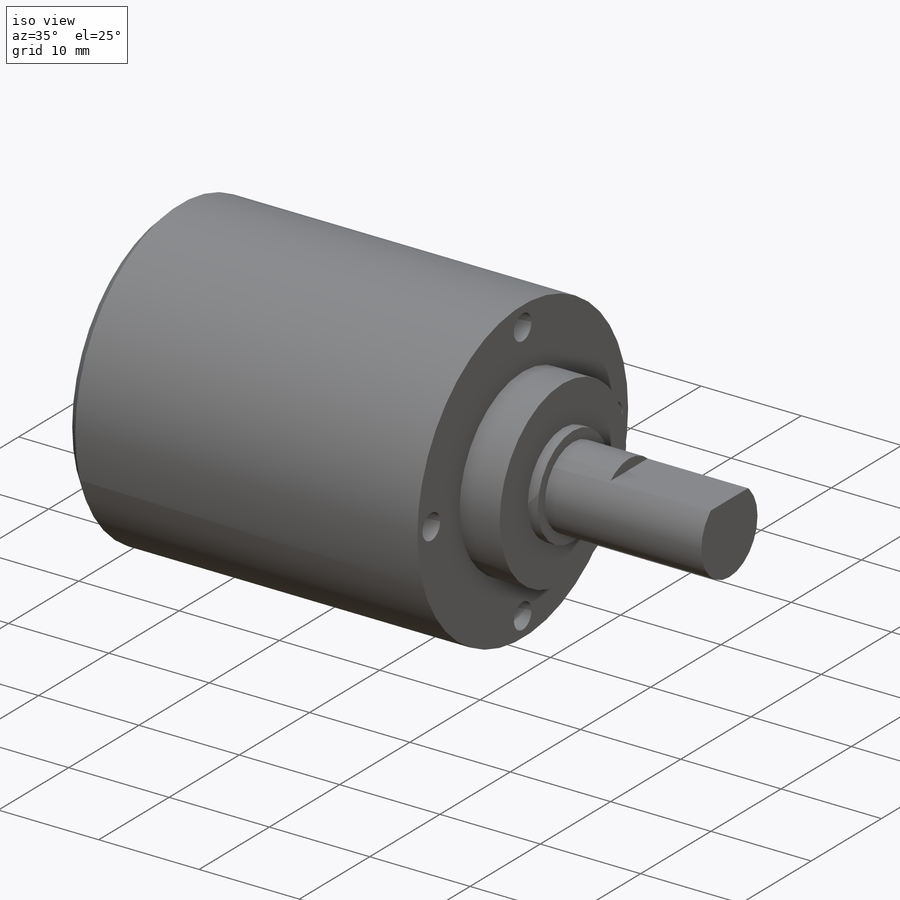
[diagram: iso view]
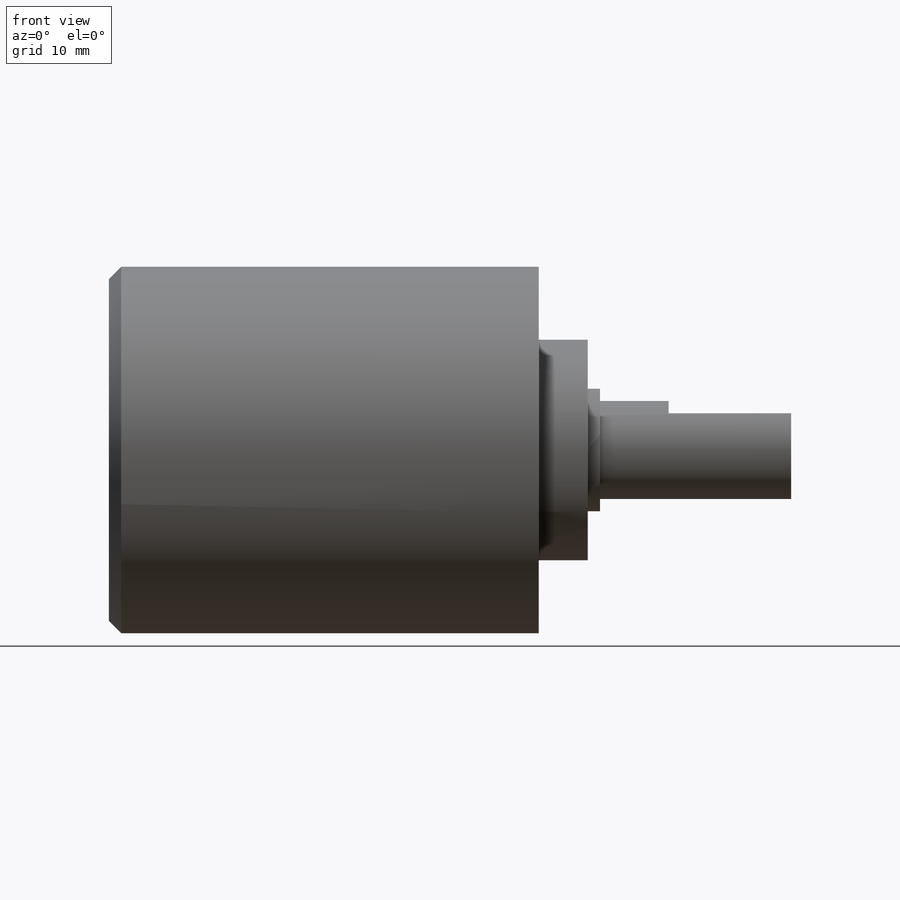
[diagram: front view]
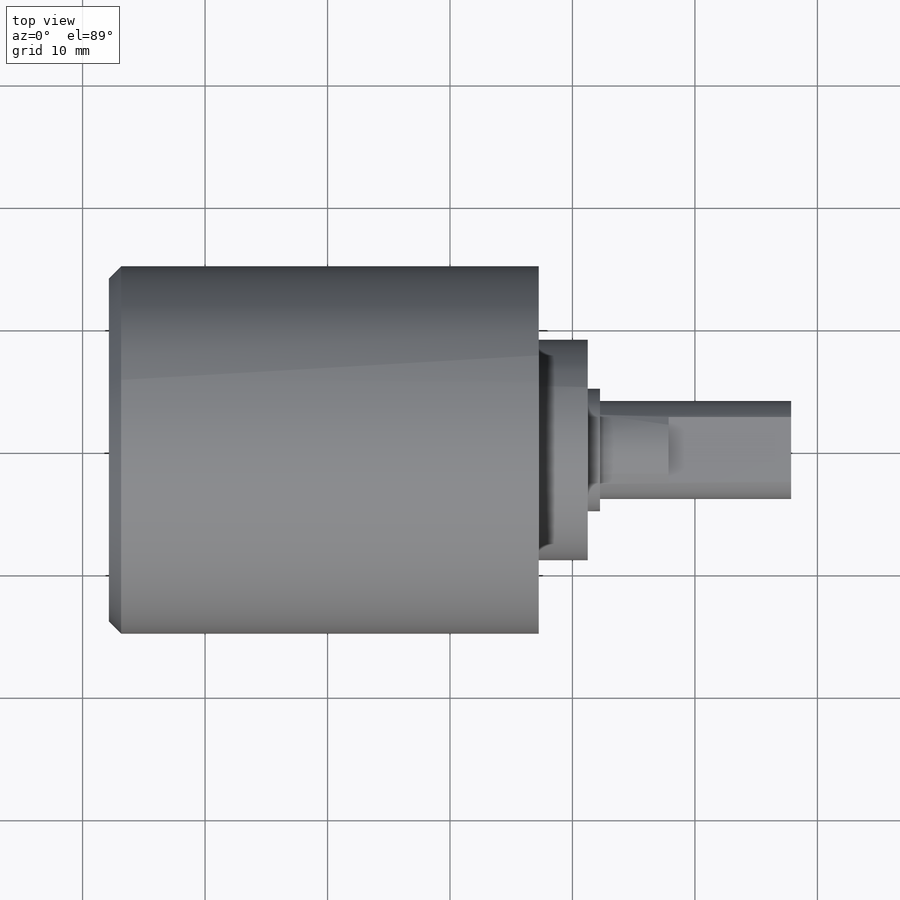
[diagram: top view]
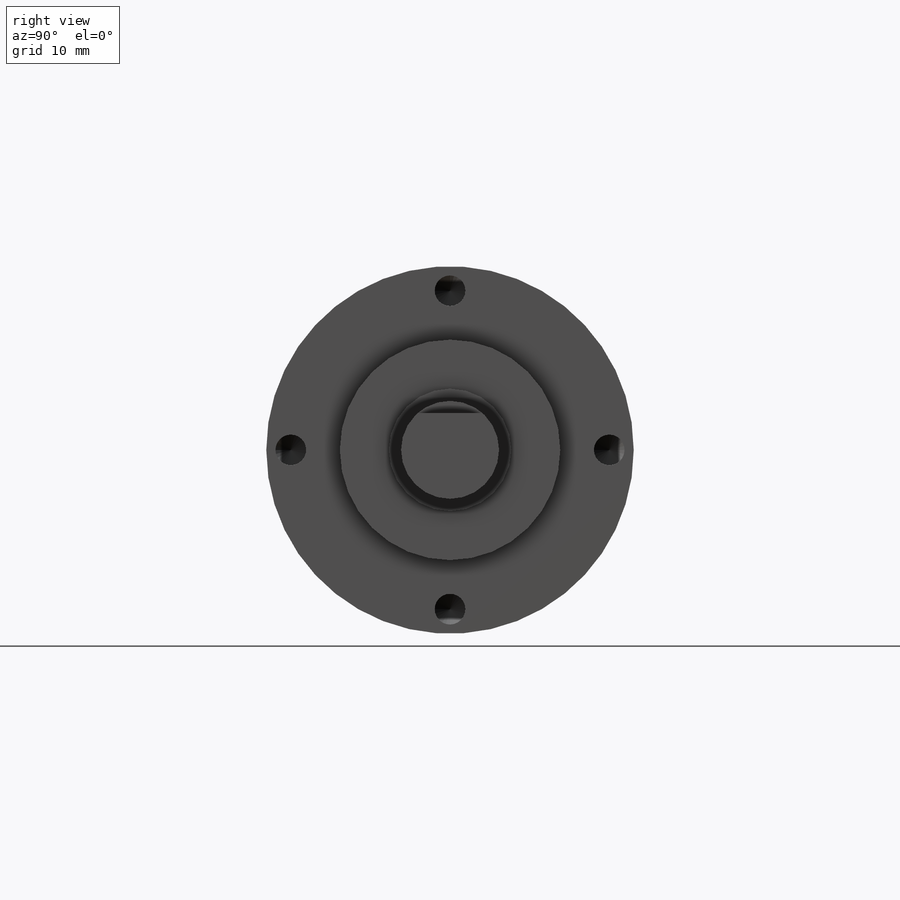
[diagram: right view]
SOLIDWORKS PART (.sldprt)
format: sldprt  version: not decoded by parser v0  size: 239,616 bytes
history: native  units: mm
features: sketch x4, plane x3, material x1, revolve x1, cut_extrude x1, hole x1, thread x1, pattern_circular x1, chamfer x1 (+8 scaffold rows collapsed)
feature tree (22):
  scaffold x8  (default folders/planes/origin — collapsed)
  material  "Matériau <non spécifié>"
  plane  "Plan de face"
  plane  "Plan de dessus"
  plane  "Plan de droite"
  sketch  "Esquisse1"  dims[D1=20.6mm D2=4.0mm D3=1.0mm D4=8.0mm D5=10.0mm D6=18.0mm D7=30.0mm D8=35.1mm]
  revolve  "Révolution1"  Angle=360deg
  sketch  "Esquisse2"  dims[D1=3.0mm]
  cut_extrude  "Extrusion1"  Depth=10mm
  hole  "Trou taraudé M31"  Diameter=2.5mm Depth=5.5mm
  sketch  "Esquisse3D1"  dims[D1=13.0mm]
  sketch  "Esquisse3"  dims[hole-wizard template sketch: 47 standard entries collapsed; hole parameters kept: c15.Profondeur du trou pour taraudage=5.5mm c15.D3=~14.816244mm c15.Angle de pointe=118.0deg]
  thread  "Filetage de perçage1"  Diameter=4mm  [1 undecoded]
  pattern_circular  "Répétition circulaire1"  Count=4 Angle=90deg
  chamfer  "Chanfrein1"  Distance=1mm Angle=45deg
decode coverage: 10 of 10 modeling features carry decoded parameters
note: ~ marks probable driven/reference dimensions
note: 1 parameter value undecoded
note: suppression state not decoded; provenance and decode notes live in map.json
